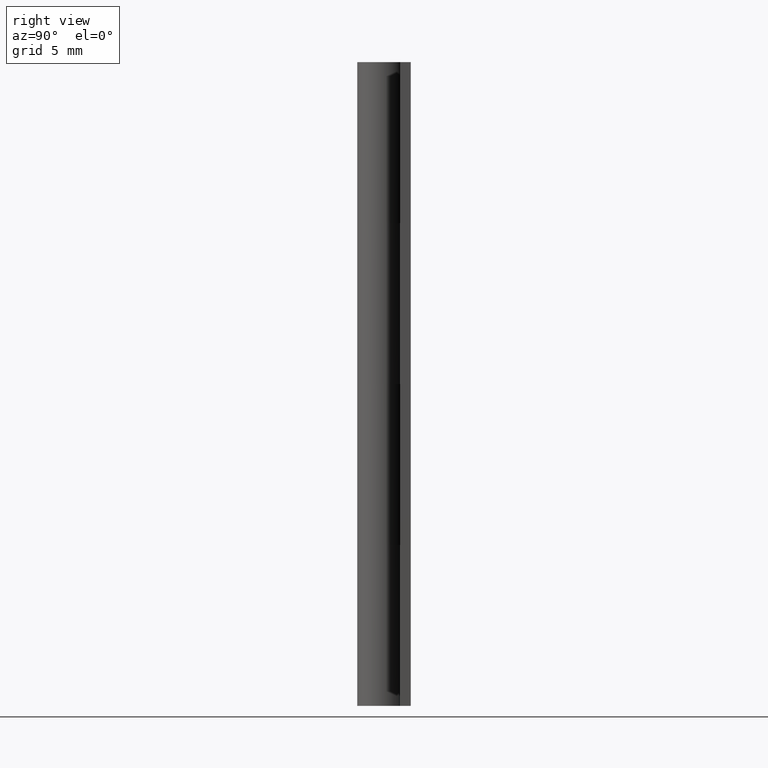
[diagram: clean part render]
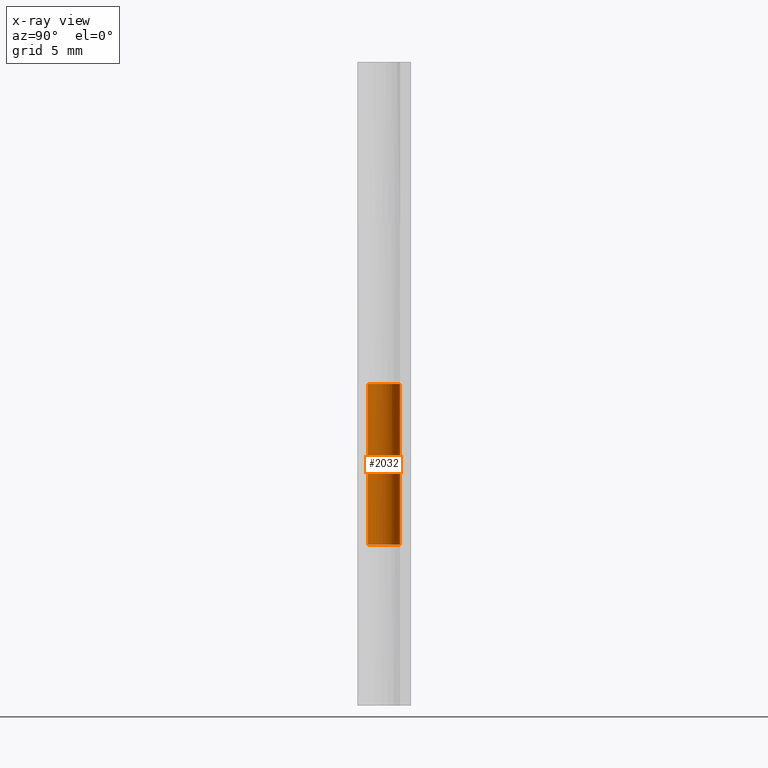
[diagram: x-ray — body ghosted, one internal face saturated and labeled with its STEP entity id]
A machine part, right view, then the same camera in x-ray: the body is ghosted and one INTERNAL B-rep face — a face not visible from any outside direction — is saturated and labeled: STEP entity #2032.
In plain terms, the highlighted face is a freeform B-spline surface patch.
Its self-contained STEP definition (entity closure, byte-faithful):
#1564=CARTESIAN_POINT('',(4.592274E-017,0.750000000000000,15.0));
#1565=VERTEX_POINT('',#1564);
#1571=CARTESIAN_POINT('',(-0.621369455316239,0.420000000000000,15.0));
#1572=VERTEX_POINT('',#1571);
#1573=CARTESIAN_POINT('',(-0.621369455316239,0.420000000000000,15.0));
#1574=CARTESIAN_POINT('',(-0.949591762138205,-0.065588847649058,14.999999999999998));
#1575=CARTESIAN_POINT('',(-0.557725015508410,-0.501440731369265,15.0));
#1576=CARTESIAN_POINT('',(-0.165858268878616,-0.937292615089472,14.999999999999998));
#1577=CARTESIAN_POINT('',(0.351781181986757,-0.662382064974589,15.0));
#1578=CARTESIAN_POINT('',(0.869420632852130,-0.387471514859705,14.999999999999998));
#1579=CARTESIAN_POINT('',(0.727765947517106,0.181264242570148,15.0));
#1580=CARTESIAN_POINT('',(0.586111262182082,0.750000000000000,14.999999999999998));
#1581=CARTESIAN_POINT('',(0.0,0.750000000000000,15.0));
#1589=(BOUNDED_CURVE()B_SPLINE_CURVE(2,(#1573,#1574,#1575,#1576,#1577,#1578,#1579,#1580,#1581),.UNSPECIFIED.,.F.,.U.)B_SPLINE_CURVE_WITH_KNOTS((3,2,2,2,3),(0.0,0.250000000000000,0.500000000000000,0.750000000000000,1.0),.UNSPECIFIED.)CURVE()GEOMETRIC_REPRESENTATION_ITEM()RATIONAL_B_SPLINE_CURVE((1.0,0.787935802194632,1.0,0.787935802194632,1.0,0.787935802194632,1.0,0.787935802194632,1.0))REPRESENTATION_ITEM(''));
#1590=EDGE_CURVE('',#1572,#1565,#1589,.T.);
#1670=CARTESIAN_POINT('',(4.592274E-017,0.750000000000000,7.500000000000000));
#1671=VERTEX_POINT('',#1670);
#1706=CARTESIAN_POINT('',(-0.621369455316239,0.420000000000000,7.500000000000000));
#1707=VERTEX_POINT('',#1706);
#1713=CARTESIAN_POINT('',(0.0,0.750000000000000,7.500000000000000));
#1714=CARTESIAN_POINT('',(0.586111262182082,0.750000000000000,7.500000000000000));
#1715=CARTESIAN_POINT('',(0.727765947517106,0.181264242570148,7.500000000000000));
#1716=CARTESIAN_POINT('',(0.869420632852130,-0.387471514859705,7.500000000000000));
#1717=CARTESIAN_POINT('',(0.351781181986757,-0.662382064974589,7.500000000000000));
#1718=CARTESIAN_POINT('',(-0.165858268878616,-0.937292615089472,7.500000000000000));
#1719=CARTESIAN_POINT('',(-0.557725015508411,-0.501440731369265,7.500000000000000));
#1720=CARTESIAN_POINT('',(-0.949591762138205,-0.065588847649058,7.500000000000000));
#1721=CARTESIAN_POINT('',(-0.621369455316239,0.420000000000000,7.500000000000000));
#1729=(BOUNDED_CURVE()B_SPLINE_CURVE(2,(#1713,#1714,#1715,#1716,#1717,#1718,#1719,#1720,#1721),.UNSPECIFIED.,.F.,.U.)B_SPLINE_CURVE_WITH_KNOTS((3,2,2,2,3),(0.0,0.250000000000000,0.500000000000000,0.750000000000000,1.0),.UNSPECIFIED.)CURVE()GEOMETRIC_REPRESENTATION_ITEM()RATIONAL_B_SPLINE_CURVE((1.0,0.787935802194632,1.0,0.787935802194632,1.0,0.787935802194632,1.0,0.787935802194632,1.0))REPRESENTATION_ITEM(''));
#1730=EDGE_CURVE('',#1671,#1707,#1729,.T.);
#1957=CARTESIAN_POINT('',(-0.621369455316239,0.420000000000000,15.0));
#1958=CARTESIAN_POINT('',(-0.621369455316239,0.420000000000000,7.500000000000000));
#1959=QUASI_UNIFORM_CURVE('',1,(#1957,#1958),.UNSPECIFIED.,.F.,.U.);
#1960=EDGE_CURVE('',#1572,#1707,#1959,.T.);
#2000=CARTESIAN_POINT('',(-0.602892645462913,0.446117090063506,15.187500000000000));
#2001=CARTESIAN_POINT('',(-0.602892645462913,0.446117090063506,7.307812500000000));
#2002=CARTESIAN_POINT('',(-1.170485508891650,-0.320940641192000,15.187499999999998));
#2003=CARTESIAN_POINT('',(-1.170485508891650,-0.320940641192000,7.307812499999999));
#2004=CARTESIAN_POINT('',(-0.291038879312590,-0.691228161122268,15.187500000000000));
#2005=CARTESIAN_POINT('',(-0.291038879312590,-0.691228161122268,7.307812500000000));
#2006=CARTESIAN_POINT('',(0.588407750266470,-1.061515681052535,15.187499999999998));
#2007=CARTESIAN_POINT('',(0.588407750266470,-1.061515681052535,7.307812499999999));
#2008=CARTESIAN_POINT('',(0.740421834838030,-0.119480151050642,15.187500000000000));
#2009=CARTESIAN_POINT('',(0.740421834838030,-0.119480151050642,7.307812500000000));
#2010=CARTESIAN_POINT('',(0.892435919409590,0.822555378951251,15.187499999999998));
#2011=CARTESIAN_POINT('',(0.892435919409590,0.822555378951251,7.307812499999999));
#2012=CARTESIAN_POINT('',(-0.058844321795883,0.747688000299846,15.187500000000000));
#2013=CARTESIAN_POINT('',(-0.058844321795883,0.747688000299846,7.307812500000000));
#2021=(BOUNDED_SURFACE()B_SPLINE_SURFACE(1,2,((#2000,#2002,#2004,#2006,#2008,#2010,#2012),(#2001,#2003,#2005,#2007,#2009,#2011,#2013)),.UNSPECIFIED.,.F.,.F.,.U.)B_SPLINE_SURFACE_WITH_KNOTS((2,2),(3,2,2,3),(0.0,7.879687500000002),(0.0,1.0,2.0,3.0),.UNSPECIFIED.)GEOMETRIC_REPRESENTATION_ITEM()RATIONAL_B_SPLINE_SURFACE(((1.0,0.617951097721073,1.0,0.617951097721073,1.0,0.617951097721073,1.0),(1.0,0.617951097721073,1.0,0.617951097721073,1.0,0.617951097721073,1.0)))REPRESENTATION_ITEM('')SURFACE());
#2022=ORIENTED_EDGE('',*,*,#1960,.F.);
#2023=ORIENTED_EDGE('',*,*,#1590,.T.);
#2024=CARTESIAN_POINT('',(4.592274E-017,0.750000000000000,15.0));
#2025=CARTESIAN_POINT('',(4.592274E-017,0.750000000000000,7.500000000000000));
#2026=QUASI_UNIFORM_CURVE('',1,(#2024,#2025),.UNSPECIFIED.,.F.,.U.);
#2027=EDGE_CURVE('',#1565,#1671,#2026,.T.);
#2028=ORIENTED_EDGE('',*,*,#2027,.T.);
#2029=ORIENTED_EDGE('',*,*,#1730,.T.);
#2030=EDGE_LOOP('',(#2022,#2023,#2028,#2029));
#2031=FACE_OUTER_BOUND('',#2030,.T.);
#2032=ADVANCED_FACE('',(#2031),#2021,.F.);